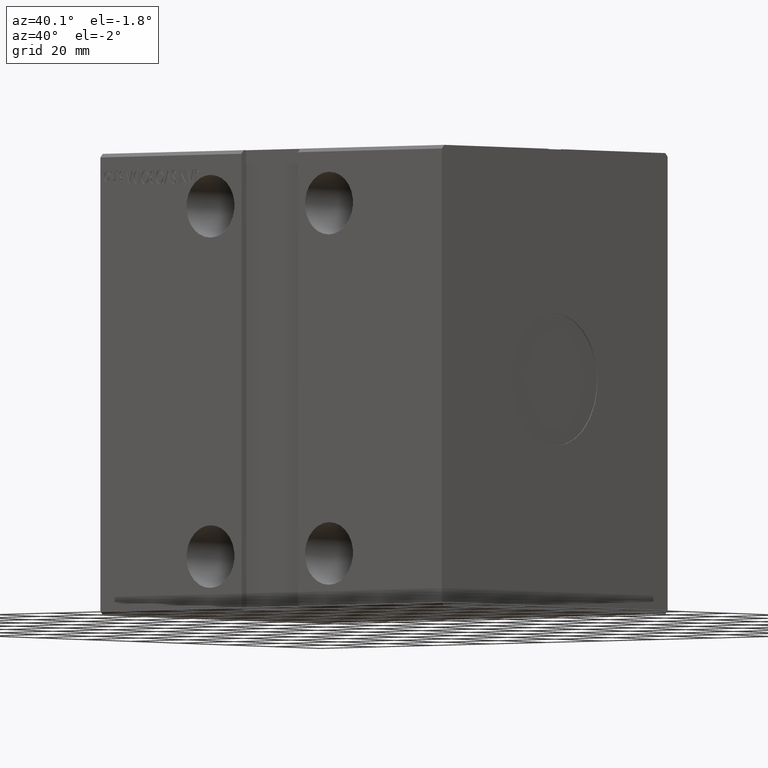
[diagram: clean part render]
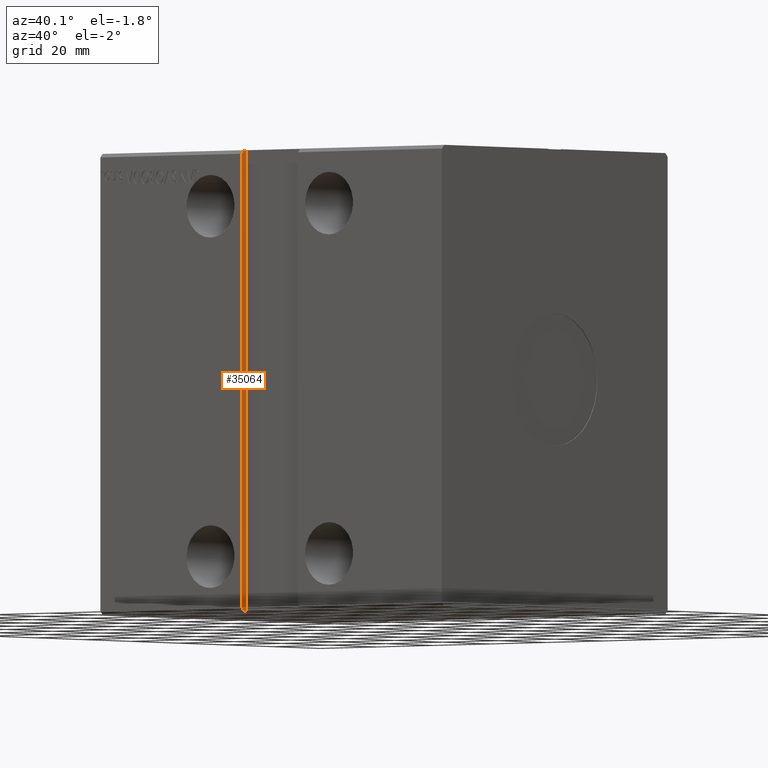
[diagram: same view with one face highlighted and labeled with its STEP entity id]
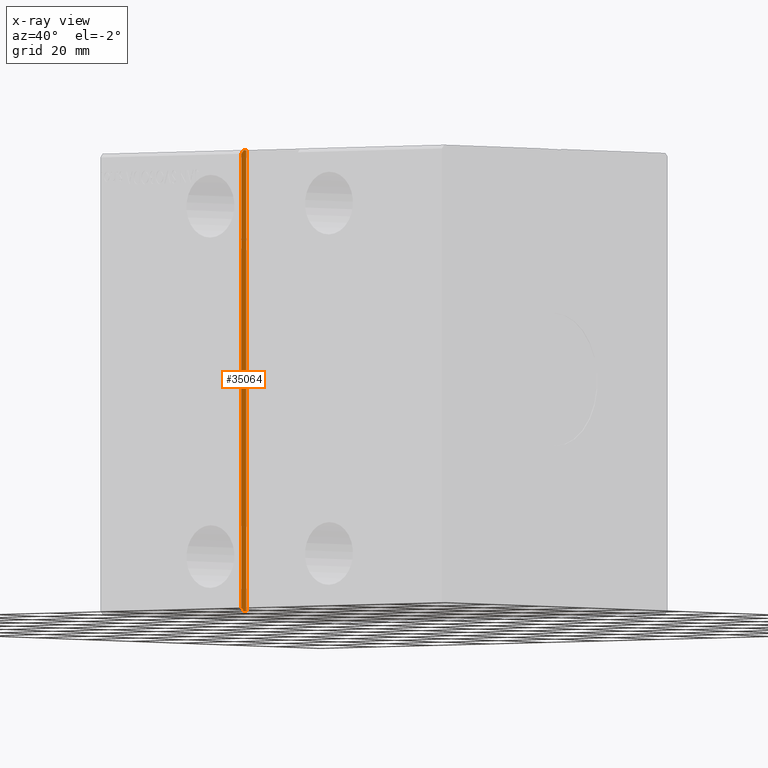
[diagram: x-ray of the same camera — body ghosted, the highlighted face saturated]
A machine part, auxiliary view. The second image highlights one B-rep face of the part: STEP entity #35064.
The next image is the same camera in x-ray: the body ghosted, the highlighted face saturated — about 0% of this face is hidden behind the body in this view.
In plain terms, the highlighted planar face has unit normal (-1, 0, -0).
Its self-contained STEP definition (entity closure, byte-faithful):
#1514 = CARTESIAN_POINT ( 'NONE',  ( 50.00000000000000000, -45.50000000000000711, -62.50000000000002842 ) ) ;
#1760 = CARTESIAN_POINT ( 'NONE',  ( 50.00000000000000000, -46.49999999999998579, -62.50000000000002842 ) ) ;
#2573 = EDGE_CURVE ( 'NONE', #8827, #29887, #15476, .T. ) ;
#2868 = DIRECTION ( 'NONE',  ( -1.110223024625156540E-16, 0.000000000000000000, 1.000000000000000000 ) ) ;
#3468 = LINE ( 'NONE', #16444, #11522 ) ;
#3586 = LINE ( 'NONE', #16560, #29105 ) ;
#3666 = DIRECTION ( 'NONE',  ( 1.110223024625156540E-16, 0.000000000000000000, -1.000000000000000000 ) ) ;
#4098 = CARTESIAN_POINT ( 'NONE',  ( 49.99999999999998579, -47.50000000000000711, 62.49999999999997868 ) ) ;
#4436 = CARTESIAN_POINT ( 'NONE',  ( 49.99999999999998579, -45.50000000000000711, 62.49999999999997868 ) ) ;
#7686 = CARTESIAN_POINT ( 'NONE',  ( 49.99999999999998579, -46.50000000000001421, 62.49999999999997868 ) ) ;
#8827 = VERTEX_POINT ( 'NONE', #1760 ) ;
#10083 = CARTESIAN_POINT ( 'NONE',  ( 49.99999999999998579, -45.50000000000000711, 62.49999999999997868 ) ) ;
#10164 = VECTOR ( 'NONE', #23215, 1000.000000000000000 ) ;
#10195 = LINE ( 'NONE', #4436, #23685 ) ;
#11522 = VECTOR ( 'NONE', #3666, 1000.000000000000000 ) ;
#11590 = ORIENTED_EDGE ( 'NONE', *, *, #13992, .T. ) ;
#13230 = ORIENTED_EDGE ( 'NONE', *, *, #19212, .F. ) ;
#13657 = VERTEX_POINT ( 'NONE', #7686 ) ;
#13992 = EDGE_CURVE ( 'NONE', #18273, #13657, #10195, .T. ) ;
#15476 = LINE ( 'NONE', #28421, #18711 ) ;
#15548 = VERTEX_POINT ( 'NONE', #20863 ) ;
#16444 = CARTESIAN_POINT ( 'NONE',  ( 49.99999999999998579, -45.50000000000000711, 62.49999999999997868 ) ) ;
#16560 = CARTESIAN_POINT ( 'NONE',  ( 50.00000000000000000, -45.50000000000000711, -62.50000000000002842 ) ) ;
#17499 = EDGE_CURVE ( 'NONE', #20910, #8827, #3586, .T. ) ;
#18273 = VERTEX_POINT ( 'NONE', #31330 ) ;
#18711 = VECTOR ( 'NONE', #31829, 1000.000000000000114 ) ;
#19212 = EDGE_CURVE ( 'NONE', #18273, #20910, #3468, .T. ) ;
#19842 = DIRECTION ( 'NONE',  ( -1.000000000000000000, 6.114063315515033944E-33, -1.110223024625156540E-16 ) ) ;
#19982 = EDGE_CURVE ( 'NONE', #15548, #29887, #33216, .T. ) ;
#20863 = CARTESIAN_POINT ( 'NONE',  ( 49.99999999999998579, -47.50000000000000711, 61.49999999999998579 ) ) ;
#20910 = VERTEX_POINT ( 'NONE', #1514 ) ;
#21139 = CARTESIAN_POINT ( 'NONE',  ( 49.99999999999998579, -47.49999999999999289, -61.50000000000001421 ) ) ;
#21989 = ORIENTED_EDGE ( 'NONE', *, *, #30198, .F. ) ;
#22114 = DIRECTION ( 'NONE',  ( -7.850462293418874601E-17, 0.7071067811865474617, 0.7071067811865474617 ) ) ;
#23215 = DIRECTION ( 'NONE',  ( 1.110223024625156540E-16, 0.000000000000000000, -1.000000000000000000 ) ) ;
#23685 = VECTOR ( 'NONE', #26743, 1000.000000000000000 ) ;
#25729 = CARTESIAN_POINT ( 'NONE',  ( 49.99999999999998579, -46.50000000000002132, 62.49999999999997158 ) ) ;
#26715 = ORIENTED_EDGE ( 'NONE', *, *, #17499, .F. ) ;
#26743 = DIRECTION ( 'NONE',  ( -0.000000000000000000, -1.000000000000000000, -5.507058653894625237E-17 ) ) ;
#28421 = CARTESIAN_POINT ( 'NONE',  ( 50.00000000000000000, -47.49999999999998579, -61.50000000000002132 ) ) ;
#29105 = VECTOR ( 'NONE', #36517, 1000.000000000000000 ) ;
#29887 = VERTEX_POINT ( 'NONE', #21139 ) ;
#30148 = ORIENTED_EDGE ( 'NONE', *, *, #19982, .T. ) ;
#30198 = EDGE_CURVE ( 'NONE', #15548, #13657, #32113, .T. ) ;
#31330 = CARTESIAN_POINT ( 'NONE',  ( 49.99999999999998579, -45.50000000000000711, 62.49999999999997868 ) ) ;
#31829 = DIRECTION ( 'NONE',  ( -7.850462293418902951E-17, -0.7071067811865451302, 0.7071067811865500152 ) ) ;
#31987 = FACE_OUTER_BOUND ( 'NONE', #41420, .T. ) ;
#32113 = LINE ( 'NONE', #25729, #38008 ) ;
#33216 = LINE ( 'NONE', #4098, #10164 ) ;
#35064 = ADVANCED_FACE ( 'NONE', ( #31987 ), #41946, .F. ) ;
#36517 = DIRECTION ( 'NONE',  ( -0.000000000000000000, -1.000000000000000000, -5.507058653894625237E-17 ) ) ;
#38008 = VECTOR ( 'NONE', #22114, 1000.000000000000114 ) ;
#38158 = ORIENTED_EDGE ( 'NONE', *, *, #2573, .F. ) ;
#41172 = AXIS2_PLACEMENT_3D ( 'NONE', #10083, #19842, #2868 ) ;
#41420 = EDGE_LOOP ( 'NONE', ( #30148, #38158, #26715, #13230, #11590, #21989 ) ) ;
#41946 = PLANE ( 'NONE',  #41172 ) ;